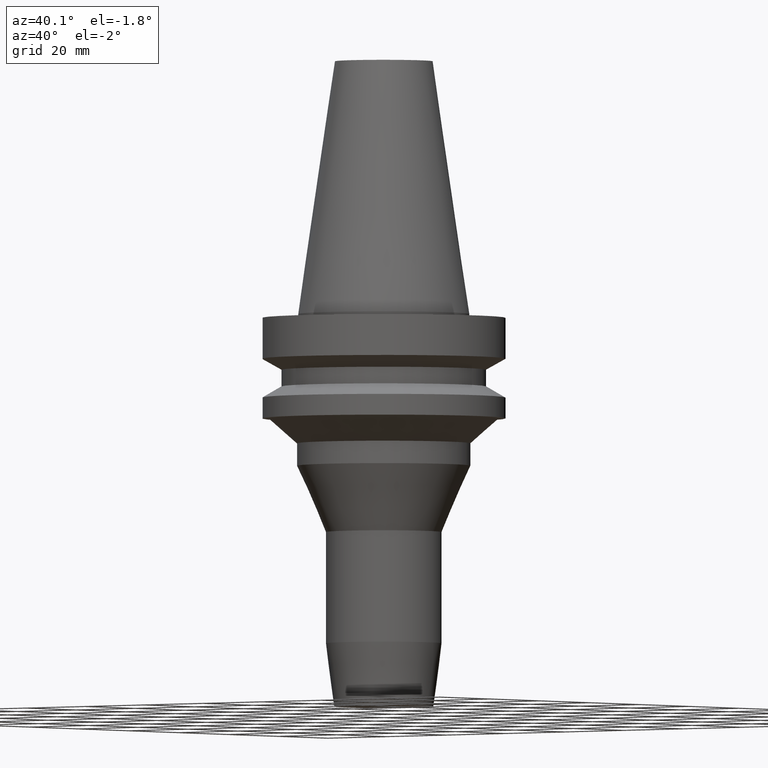
[diagram: clean part render]
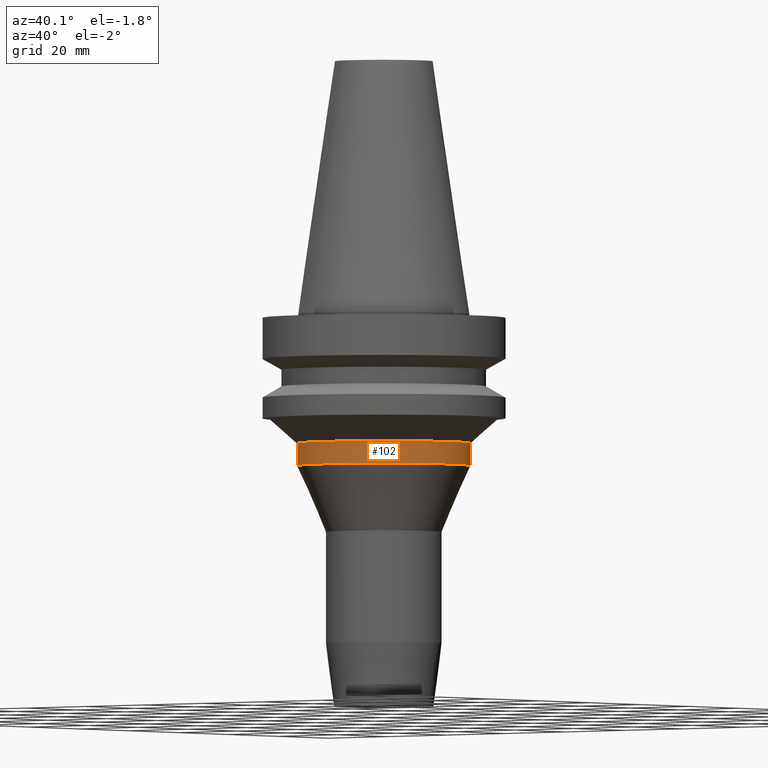
[diagram: same view with one face highlighted and labeled with its STEP entity id]
A machine part, auxiliary view. The second image highlights one B-rep face of the part: STEP entity #102.
In plain terms, the highlighted cylindrical surface (bore or boss wall) has radius 22.5 mm, axis along (0, -0, -1).
Its self-contained STEP definition (entity closure, byte-faithful):
#59=EDGE_CURVE('Unnamed[1]',#158,#158,#159,.T.);
#102=ADVANCED_FACE('Unnamed[1]',(#226,#227),#228,.T.);
#135=EDGE_CURVE('Unnamed[1]',#276,#276,#277,.T.);
#158=VERTEX_POINT('',#292);
#159=CIRCLE('',#293,22.4999999999997);
#226=FACE_BOUND('',#377,.T.);
#227=FACE_BOUND('',#378,.T.);
#228=CYLINDRICAL_SURFACE('',#379,22.4999999999998);
#276=VERTEX_POINT('',#439);
#277=CIRCLE('',#440,22.4999999999998);
#292=CARTESIAN_POINT('',(2.40459052005005E-015,22.4999999999998,-39.2699433293619));
#293=AXIS2_PLACEMENT_3D('',#448,#449,#450);
#377=EDGE_LOOP('',(#524));
#378=EDGE_LOOP('',(#525));
#379=AXIS2_PLACEMENT_3D('',#526,#527,#528);
#439=CARTESIAN_POINT('',(2.04902721681722E-015,22.4999999999999,-33.4631539190537));
#440=AXIS2_PLACEMENT_3D('',#579,#580,#581);
#448=CARTESIAN_POINT('',(2.40459052005005E-015,7.46146081221668E-014,-39.2699433293619));
#449=DIRECTION('',(6.12323399573677E-017,-2.41671098803277E-017,-1.0));
#450=DIRECTION('',(-3.34734404278848E-033,1.0,-2.41671098803277E-017));
#524=ORIENTED_EDGE('',*,*,#59,.F.);
#525=ORIENTED_EDGE('',*,*,#135,.T.);
#526=CARTESIAN_POINT('',(2.22680886843363E-015,7.46847747810324E-014,-36.3665486242078));
#527=DIRECTION('',(6.12323399573677E-017,-2.41671098803277E-017,-1.0));
#528=DIRECTION('',(-3.34734404278848E-033,1.0,-2.41671098803277E-017));
#579=CARTESIAN_POINT('',(2.04902721681722E-015,7.4754941439898E-014,-33.4631539190537));
#580=DIRECTION('',(6.12323399573677E-017,-2.41671098803277E-017,-1.0));
#581=DIRECTION('',(-3.34734404278847E-033,1.0,-2.41671098803277E-017));